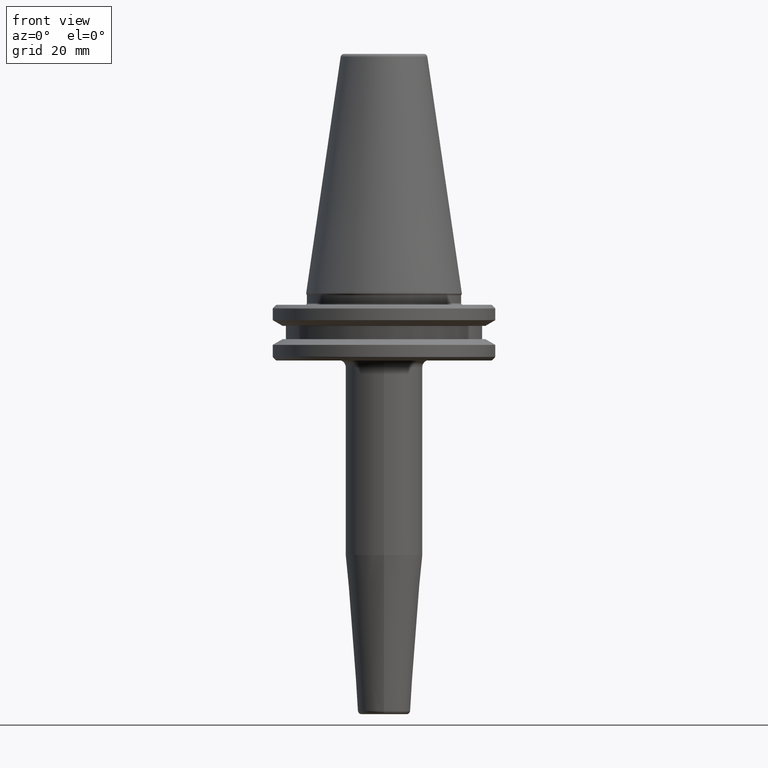
[diagram: clean part render]
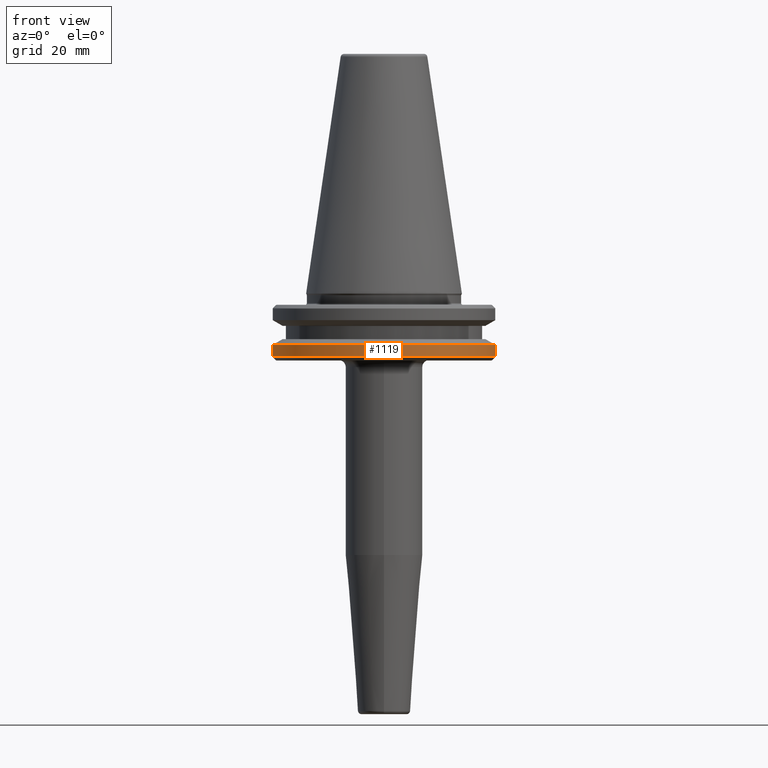
[diagram: same view with one face highlighted and labeled with its STEP entity id]
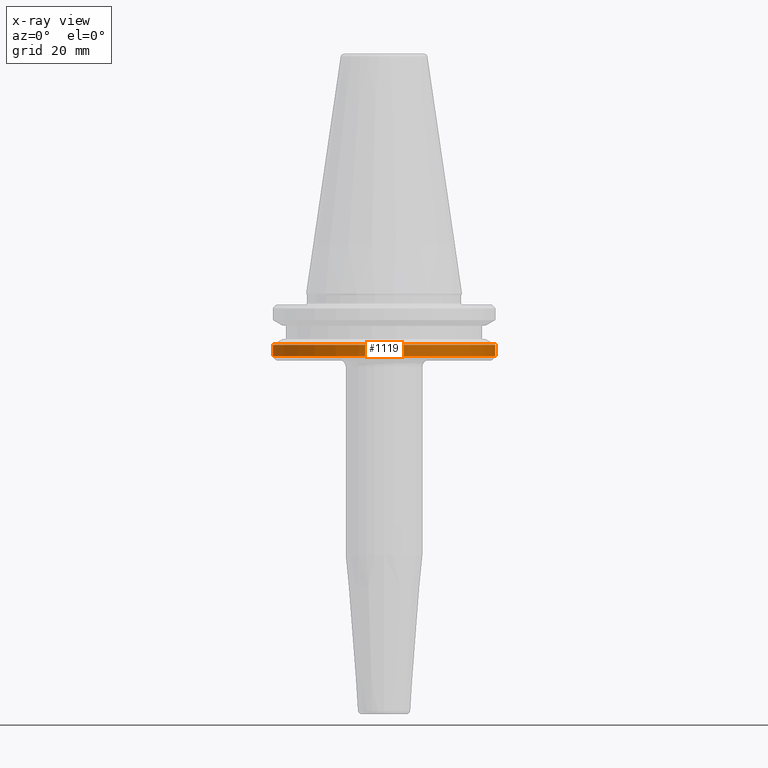
[diagram: x-ray of the same camera — body ghosted, the highlighted face saturated]
A machine part, front view. The second image highlights one B-rep face of the part: STEP entity #1119.
The next image is the same camera in x-ray: the body ghosted, the highlighted face saturated — about 0% of this face is hidden behind the body in this view.
In plain terms, the highlighted cylindrical surface (partial cylindrical patch) has radius 31.75 mm, axis along (-0, -0, 1).
Its self-contained STEP definition (entity closure, byte-faithful):
#24 = CARTESIAN_POINT ( 'NONE',  ( 31.75000000000000000, 0.0000000000000000000, -14.62183664205671200 ) ) ;
#32 = EDGE_CURVE ( 'NONE', #45, #425, #69, .T. ) ;
#45 = VERTEX_POINT ( 'NONE', #1254 ) ;
#48 = AXIS2_PLACEMENT_3D ( 'NONE', #599, #110, #989 ) ;
#57 = ORIENTED_EDGE ( 'NONE', *, *, #808, .T. ) ;
#69 = CIRCLE ( 'NONE', #1125, 31.75000000000000000 ) ;
#88 = DIRECTION ( 'NONE',  ( -0.0000000000000000000, -0.0000000000000000000, 1.000000000000000000 ) ) ;
#89 = LINE ( 'NONE', #181, #1091 ) ;
#110 = DIRECTION ( 'NONE',  ( -0.0000000000000000000, -0.0000000000000000000, 1.000000000000000000 ) ) ;
#168 = DIRECTION ( 'NONE',  ( -0.0000000000000000000, -0.0000000000000000000, 1.000000000000000000 ) ) ;
#181 = CARTESIAN_POINT ( 'NONE',  ( -31.75000000000000000, 3.888253587292846500E-015, 113.5216080541959500 ) ) ;
#192 = ORIENTED_EDGE ( 'NONE', *, *, #968, .T. ) ;
#226 = EDGE_LOOP ( 'NONE', ( #1196, #57, #192, #967 ) ) ;
#264 = CIRCLE ( 'NONE', #286, 31.75000000000000000 ) ;
#286 = AXIS2_PLACEMENT_3D ( 'NONE', #529, #1005, #1090 ) ;
#335 = EDGE_CURVE ( 'NONE', #1117, #45, #89, .T. ) ;
#337 = VECTOR ( 'NONE', #168, 1000.000000000000000 ) ;
#383 = FACE_OUTER_BOUND ( 'NONE', #226, .T. ) ;
#425 = VERTEX_POINT ( 'NONE', #24 ) ;
#529 = CARTESIAN_POINT ( 'NONE',  ( 0.0000000000000000000, 0.0000000000000000000, -17.93431457505076300 ) ) ;
#599 = CARTESIAN_POINT ( 'NONE',  ( 0.0000000000000000000, 0.0000000000000000000, 113.5216080541959500 ) ) ;
#688 = CARTESIAN_POINT ( 'NONE',  ( -31.75000000000000000, 3.888253587292846500E-015, -17.93431457505076300 ) ) ;
#742 = DIRECTION ( 'NONE',  ( -0.0000000000000000000, -0.0000000000000000000, 1.000000000000000000 ) ) ;
#745 = CARTESIAN_POINT ( 'NONE',  ( 31.75000000000000000, 0.0000000000000000000, 113.5216080541959500 ) ) ;
#808 = EDGE_CURVE ( 'NONE', #1117, #1006, #264, .T. ) ;
#852 = LINE ( 'NONE', #745, #337 ) ;
#860 = CARTESIAN_POINT ( 'NONE',  ( 0.0000000000000000000, 0.0000000000000000000, -14.62183664205671200 ) ) ;
#967 = ORIENTED_EDGE ( 'NONE', *, *, #32, .F. ) ;
#968 = EDGE_CURVE ( 'NONE', #1006, #425, #852, .T. ) ;
#989 = DIRECTION ( 'NONE',  ( 1.000000000000000000, 0.0000000000000000000, 0.0000000000000000000 ) ) ;
#1005 = DIRECTION ( 'NONE',  ( -0.0000000000000000000, -0.0000000000000000000, 1.000000000000000000 ) ) ;
#1006 = VERTEX_POINT ( 'NONE', #1046 ) ;
#1046 = CARTESIAN_POINT ( 'NONE',  ( 31.75000000000000000, 0.0000000000000000000, -17.93431457505076300 ) ) ;
#1067 = DIRECTION ( 'NONE',  ( 1.000000000000000000, 0.0000000000000000000, 0.0000000000000000000 ) ) ;
#1090 = DIRECTION ( 'NONE',  ( 1.000000000000000000, 0.0000000000000000000, 0.0000000000000000000 ) ) ;
#1091 = VECTOR ( 'NONE', #742, 1000.000000000000000 ) ;
#1117 = VERTEX_POINT ( 'NONE', #688 ) ;
#1119 = ADVANCED_FACE ( 'NONE', ( #383 ), #1149, .T. ) ;
#1125 = AXIS2_PLACEMENT_3D ( 'NONE', #860, #88, #1067 ) ;
#1149 = CYLINDRICAL_SURFACE ( 'NONE', #48, 31.75000000000000000 ) ;
#1196 = ORIENTED_EDGE ( 'NONE', *, *, #335, .F. ) ;
#1254 = CARTESIAN_POINT ( 'NONE',  ( -31.75000000000000000, 3.888253587292846500E-015, -14.62183664205671200 ) ) ;